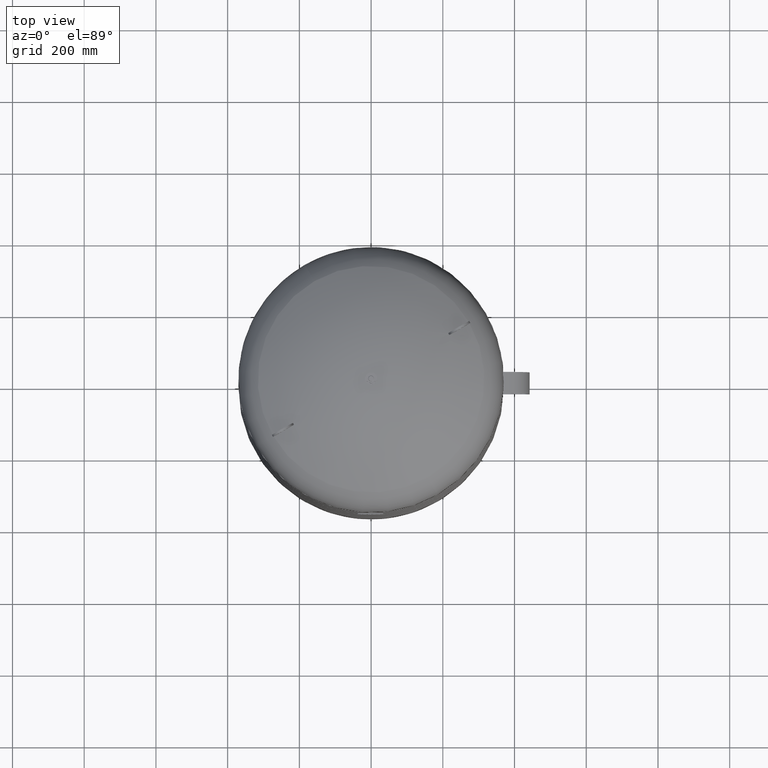
[diagram: clean part render]
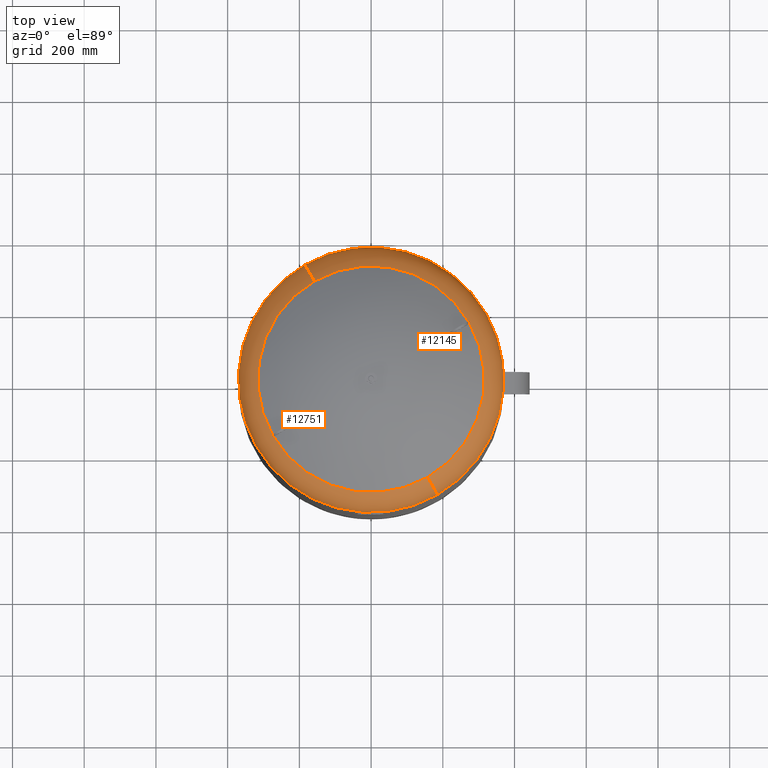
[diagram: same view with one multi-face feature highlighted, each face labeled with its STEP entity id]
A machine part, top view. The highlighted faces form ONE feature: a constant-radius fillet chain: 2 tangent blend faces with common blend radius 115.5 mm. The faces share edges in the B-rep.
Their STEP definitions:
[1] entity #12751 (Torus):
#12067=CARTESIAN_POINT('',(-320.429399400242350,-184.999999999999970,1500.206120388130600));
#12068=VERTEX_POINT('',#12067);
#12075=CARTESIAN_POINT('',(-184.999999999999970,320.429399400242350,1500.206120388130300));
#12076=VERTEX_POINT('',#12075);
#12077=CARTESIAN_POINT('',(-2.682575E-015,-4.159481E-014,1500.206120388130600));
#12078=DIRECTION('',(-1.060575E-016,-6.123234E-017,-1.000000000000000));
#12079=DIRECTION('',(0.866025403784439,0.500000000000000,-1.224647E-016));
#12080=AXIS2_PLACEMENT_3D('',#12077,#12078,#12079);
#12081=CIRCLE('',#12080,370.0);
#12082=EDGE_CURVE('',#12068,#12076,#12081,.T.);
#12099=CARTESIAN_POINT('',(185.0,-320.429399400242400,1500.206120388130600));
#12100=VERTEX_POINT('',#12099);
#12101=CARTESIAN_POINT('',(157.965517241379270,-273.604301705966460,1598.014494274920500));
#12102=VERTEX_POINT('',#12101);
#12103=CARTESIAN_POINT('',(127.249999999999970,-220.403465263139680,1500.206120388130300));
#12104=DIRECTION('',(-0.866025403784439,-0.500000000000000,1.224647E-016));
#12105=DIRECTION('',(0.500000000000000,-0.866025403784439,0.0));
#12106=AXIS2_PLACEMENT_3D('',#12103,#12104,#12105);
#12107=CIRCLE('',#12106,115.499999999999990);
#12108=EDGE_CURVE('',#12100,#12102,#12107,.T.);
#12118=CARTESIAN_POINT('',(-157.965517241379250,273.604301705966410,1598.014494274920300));
#12119=VERTEX_POINT('',#12118);
#12120=CARTESIAN_POINT('',(-127.249999999999970,220.403465263139680,1500.206120388130300));
#12121=DIRECTION('',(0.866025403784439,0.500000000000000,-1.224647E-016));
#12122=DIRECTION('',(-0.500000000000000,0.866025403784439,0.0));
#12123=AXIS2_PLACEMENT_3D('',#12120,#12121,#12122);
#12124=CIRCLE('',#12123,115.500000000000010);
#12125=EDGE_CURVE('',#12076,#12119,#12124,.T.);
#12723=CARTESIAN_POINT('',(-1.292814E-015,-2.004580E-014,1598.014494274920500));
#12724=DIRECTION('',(-1.060575E-016,-6.123234E-017,-1.0));
#12725=DIRECTION('',(0.866025403784439,0.500000000000000,-1.224647E-016));
#12726=AXIS2_PLACEMENT_3D('',#12723,#12724,#12725);
#12727=CIRCLE('',#12726,315.931034482758610);
#12728=EDGE_CURVE('',#12102,#12119,#12727,.T.);
#12733=CARTESIAN_POINT('',(-2.682575E-015,-4.159481E-014,1500.206120388130300));
#12734=DIRECTION('',(-1.420901E-017,-2.203186E-016,-1.0));
#12735=DIRECTION('',(0.500000000000000,-0.866025403784439,1.836970E-016));
#12736=AXIS2_PLACEMENT_3D('',#12733,#12734,#12735);
#12737=TOROIDAL_SURFACE('',#12736,254.500000000000030,115.500000000000000);
#12738=ORIENTED_EDGE('',*,*,#12108,.T.);
#12739=ORIENTED_EDGE('',*,*,#12728,.T.);
#12740=ORIENTED_EDGE('',*,*,#12125,.F.);
#12741=ORIENTED_EDGE('',*,*,#12082,.F.);
#12742=CARTESIAN_POINT('',(-2.682575E-015,-4.159481E-014,1500.206120388130600));
#12743=DIRECTION('',(-1.060575E-016,-6.123234E-017,-1.000000000000000));
#12744=DIRECTION('',(0.866025403784439,0.500000000000000,-1.224647E-016));
#12745=AXIS2_PLACEMENT_3D('',#12742,#12743,#12744);
#12746=CIRCLE('',#12745,370.0);
#12747=EDGE_CURVE('',#12100,#12068,#12746,.T.);
#12748=ORIENTED_EDGE('',*,*,#12747,.F.);
#12749=EDGE_LOOP('',(#12738,#12739,#12740,#12741,#12748));
#12750=FACE_OUTER_BOUND('',#12749,.T.);
#12751=ADVANCED_FACE('',(#12750),#12737,.T.);
[2] entity #12145 (Torus):
#12050=CARTESIAN_POINT('',(320.429399400242350,184.999999999999940,1500.206120388130300));
#12051=VERTEX_POINT('',#12050);
#12075=CARTESIAN_POINT('',(-184.999999999999970,320.429399400242350,1500.206120388130300));
#12076=VERTEX_POINT('',#12075);
#12084=CARTESIAN_POINT('',(-2.682575E-015,-4.159481E-014,1500.206120388130600));
#12085=DIRECTION('',(-1.060575E-016,-6.123234E-017,-1.000000000000000));
#12086=DIRECTION('',(0.866025403784439,0.500000000000000,-1.224647E-016));
#12087=AXIS2_PLACEMENT_3D('',#12084,#12085,#12086);
#12088=CIRCLE('',#12087,370.0);
#12089=EDGE_CURVE('',#12076,#12051,#12088,.T.);
#12094=CARTESIAN_POINT('',(-2.682575E-015,-4.159481E-014,1500.206120388130300));
#12095=DIRECTION('',(-1.420901E-017,-2.203186E-016,-1.0));
#12096=DIRECTION('',(0.500000000000000,-0.866025403784439,1.836970E-016));
#12097=AXIS2_PLACEMENT_3D('',#12094,#12095,#12096);
#12098=TOROIDAL_SURFACE('',#12097,254.500000000000030,115.500000000000000);
#12099=CARTESIAN_POINT('',(185.0,-320.429399400242400,1500.206120388130600));
#12100=VERTEX_POINT('',#12099);
#12101=CARTESIAN_POINT('',(157.965517241379270,-273.604301705966460,1598.014494274920500));
#12102=VERTEX_POINT('',#12101);
#12103=CARTESIAN_POINT('',(127.249999999999970,-220.403465263139680,1500.206120388130300));
#12104=DIRECTION('',(-0.866025403784439,-0.500000000000000,1.224647E-016));
#12105=DIRECTION('',(0.500000000000000,-0.866025403784439,0.0));
#12106=AXIS2_PLACEMENT_3D('',#12103,#12104,#12105);
#12107=CIRCLE('',#12106,115.499999999999990);
#12108=EDGE_CURVE('',#12100,#12102,#12107,.T.);
#12109=ORIENTED_EDGE('',*,*,#12108,.F.);
#12110=CARTESIAN_POINT('',(-2.682575E-015,-4.159481E-014,1500.206120388130600));
#12111=DIRECTION('',(-1.060575E-016,-6.123234E-017,-1.000000000000000));
#12112=DIRECTION('',(0.866025403784439,0.500000000000000,-1.224647E-016));
#12113=AXIS2_PLACEMENT_3D('',#12110,#12111,#12112);
#12114=CIRCLE('',#12113,370.0);
#12115=EDGE_CURVE('',#12051,#12100,#12114,.T.);
#12116=ORIENTED_EDGE('',*,*,#12115,.F.);
#12117=ORIENTED_EDGE('',*,*,#12089,.F.);
#12118=CARTESIAN_POINT('',(-157.965517241379250,273.604301705966410,1598.014494274920300));
#12119=VERTEX_POINT('',#12118);
#12120=CARTESIAN_POINT('',(-127.249999999999970,220.403465263139680,1500.206120388130300));
#12121=DIRECTION('',(0.866025403784439,0.500000000000000,-1.224647E-016));
#12122=DIRECTION('',(-0.500000000000000,0.866025403784439,0.0));
#12123=AXIS2_PLACEMENT_3D('',#12120,#12121,#12122);
#12124=CIRCLE('',#12123,115.500000000000010);
#12125=EDGE_CURVE('',#12076,#12119,#12124,.T.);
#12126=ORIENTED_EDGE('',*,*,#12125,.T.);
#12127=CARTESIAN_POINT('',(273.604301705966460,157.965517241379250,1598.014494274920500));
#12128=VERTEX_POINT('',#12127);
#12129=CARTESIAN_POINT('',(-1.292814E-015,-2.004580E-014,1598.014494274920500));
#12130=DIRECTION('',(-1.060575E-016,-6.123234E-017,-1.0));
#12131=DIRECTION('',(0.866025403784439,0.500000000000000,-1.224647E-016));
#12132=AXIS2_PLACEMENT_3D('',#12129,#12130,#12131);
#12133=CIRCLE('',#12132,315.931034482758610);
#12134=EDGE_CURVE('',#12119,#12128,#12133,.T.);
#12135=ORIENTED_EDGE('',*,*,#12134,.T.);
#12136=CARTESIAN_POINT('',(-1.292814E-015,-2.004580E-014,1598.014494274920500));
#12137=DIRECTION('',(-1.060575E-016,-6.123234E-017,-1.0));
#12138=DIRECTION('',(0.866025403784439,0.500000000000000,-1.224647E-016));
#12139=AXIS2_PLACEMENT_3D('',#12136,#12137,#12138);
#12140=CIRCLE('',#12139,315.931034482758610);
#12141=EDGE_CURVE('',#12128,#12102,#12140,.T.);
#12142=ORIENTED_EDGE('',*,*,#12141,.T.);
#12143=EDGE_LOOP('',(#12109,#12116,#12117,#12126,#12135,#12142));
#12144=FACE_OUTER_BOUND('',#12143,.T.);
#12145=ADVANCED_FACE('',(#12144),#12098,.T.);